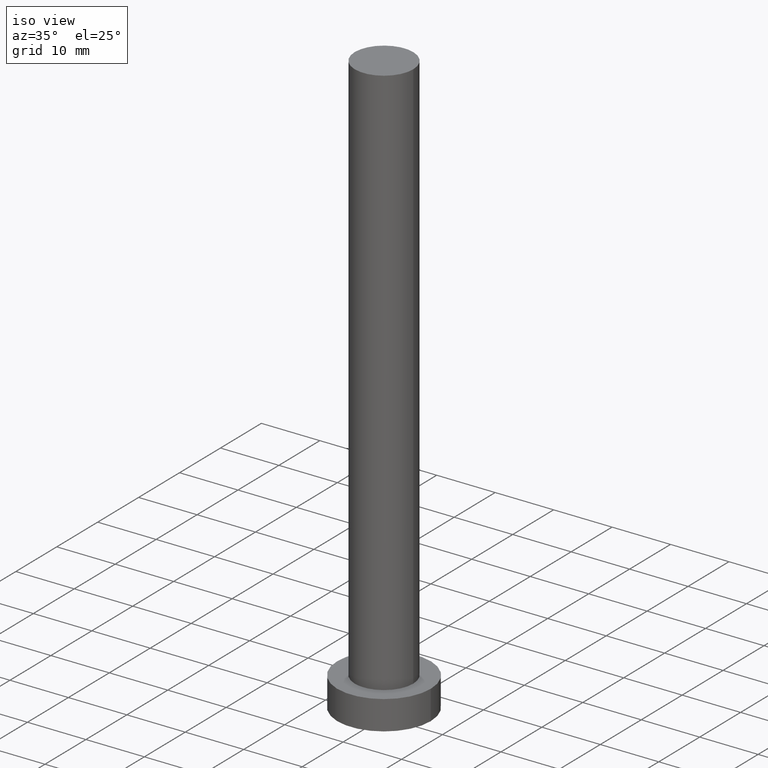
[diagram: clean part render]
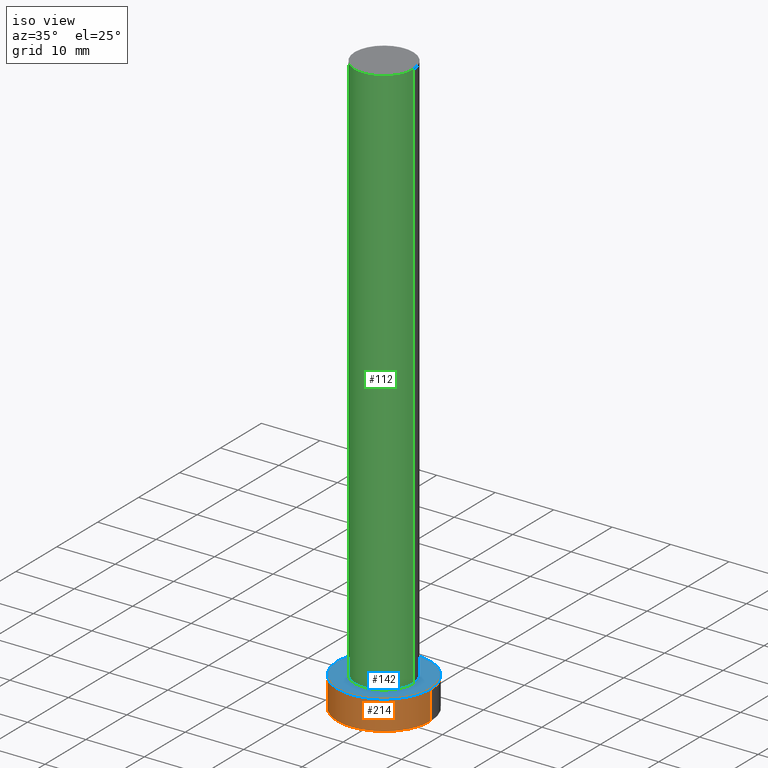
[diagram: same view with three faces highlighted in distinct colors, each labeled with its STEP entity id]
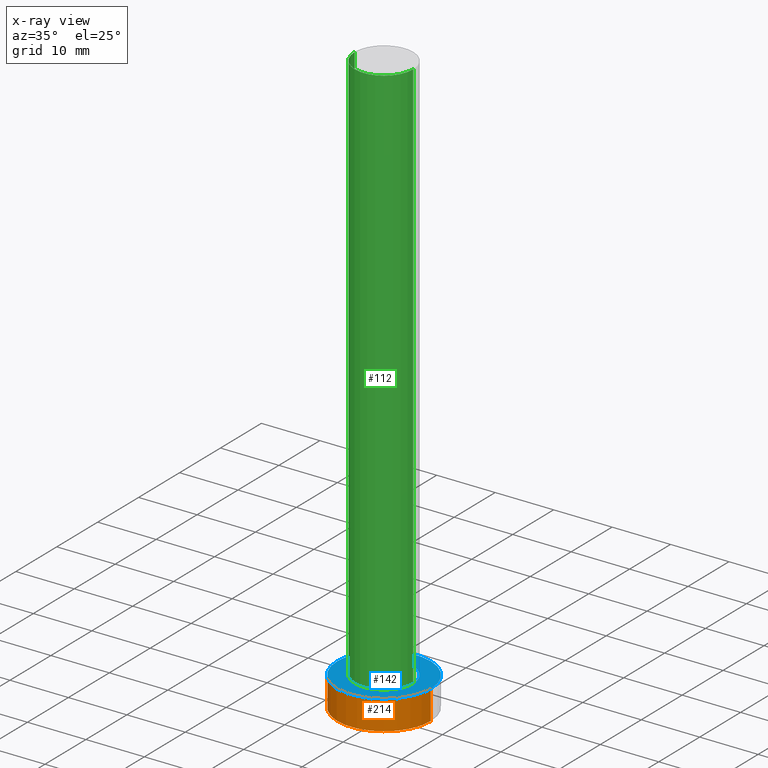
[diagram: x-ray of the same camera — body ghosted, the three highlighted faces saturated]
A machine part, iso view with three faces highlighted in distinct colors.
The next image is the same camera in x-ray (body ghosted, the three faces saturated) — at least one of them is partly hidden behind the body in this view.
Their STEP definitions:

[orange] entity #214 — the highlighted cylindrical surface (partial cylindrical patch) has radius 8 mm, axis along (-0, -0, -1).
#10 = VECTOR ( 'NONE', #26, 1000.000000000000000 ) ;
#11 = LINE ( 'NONE', #228, #10 ) ;
#14 = CARTESIAN_POINT ( 'NONE',  ( 8.000000000000000000, 9.797174393178825657E-16, 0.000000000000000000 ) ) ;
#21 = VERTEX_POINT ( 'NONE', #14 ) ;
#22 = CARTESIAN_POINT ( 'NONE',  ( -8.000000000000000000, 0.000000000000000000, 5.000000000000000000 ) ) ;
#23 = DIRECTION ( 'NONE',  ( 0.000000000000000000, 0.000000000000000000, 1.000000000000000000 ) ) ;
#26 = DIRECTION ( 'NONE',  ( -0.000000000000000000, -0.000000000000000000, -1.000000000000000000 ) ) ;
#27 = DIRECTION ( 'NONE',  ( -0.000000000000000000, -0.000000000000000000, -1.000000000000000000 ) ) ;
#35 = DIRECTION ( 'NONE',  ( 1.000000000000000000, 0.000000000000000000, 0.000000000000000000 ) ) ;
#45 = CARTESIAN_POINT ( 'NONE',  ( -8.000000000000000000, 0.000000000000000000, 0.000000000000000000 ) ) ;
#49 = AXIS2_PLACEMENT_3D ( 'NONE', #146, #23, #233 ) ;
#55 = EDGE_LOOP ( 'NONE', ( #127, #155, #139, #252 ) ) ;
#57 = EDGE_CURVE ( 'NONE', #141, #164, #150, .T. ) ;
#60 = CARTESIAN_POINT ( 'NONE',  ( 8.000000000000000000, 9.797174393178825657E-16, 5.000000000000000000 ) ) ;
#80 = FACE_OUTER_BOUND ( 'NONE', #55, .T. ) ;
#83 = CIRCLE ( 'NONE', #49, 8.000000000000000000 ) ;
#120 = DIRECTION ( 'NONE',  ( -1.000000000000000000, 0.000000000000000000, 0.000000000000000000 ) ) ;
#121 = AXIS2_PLACEMENT_3D ( 'NONE', #159, #176, #120 ) ;
#126 = LINE ( 'NONE', #22, #227 ) ;
#127 = ORIENTED_EDGE ( 'NONE', *, *, #224, .F. ) ;
#130 = EDGE_CURVE ( 'NONE', #141, #137, #126, .T. ) ;
#134 = AXIS2_PLACEMENT_3D ( 'NONE', #156, #229, #35 ) ;
#137 = VERTEX_POINT ( 'NONE', #45 ) ;
#139 = ORIENTED_EDGE ( 'NONE', *, *, #130, .T. ) ;
#141 = VERTEX_POINT ( 'NONE', #218 ) ;
#146 = CARTESIAN_POINT ( 'NONE',  ( 0.000000000000000000, 0.000000000000000000, 0.000000000000000000 ) ) ;
#150 = CIRCLE ( 'NONE', #134, 8.000000000000000000 ) ;
#155 = ORIENTED_EDGE ( 'NONE', *, *, #57, .F. ) ;
#156 = CARTESIAN_POINT ( 'NONE',  ( 0.000000000000000000, 0.000000000000000000, 5.000000000000000000 ) ) ;
#159 = CARTESIAN_POINT ( 'NONE',  ( 0.000000000000000000, 0.000000000000000000, 5.000000000000000000 ) ) ;
#164 = VERTEX_POINT ( 'NONE', #60 ) ;
#176 = DIRECTION ( 'NONE',  ( -0.000000000000000000, -0.000000000000000000, -1.000000000000000000 ) ) ;
#203 = EDGE_CURVE ( 'NONE', #137, #21, #83, .T. ) ;
#214 = ADVANCED_FACE ( 'NONE', ( #80 ), #222, .T. ) ;
#218 = CARTESIAN_POINT ( 'NONE',  ( -8.000000000000000000, 0.000000000000000000, 5.000000000000000000 ) ) ;
#222 = CYLINDRICAL_SURFACE ( 'NONE', #121, 8.000000000000000000 ) ;
#224 = EDGE_CURVE ( 'NONE', #164, #21, #11, .T. ) ;
#227 = VECTOR ( 'NONE', #27, 1000.000000000000000 ) ;
#228 = CARTESIAN_POINT ( 'NONE',  ( 8.000000000000000000, 9.797174393178825657E-16, 5.000000000000000000 ) ) ;
#229 = DIRECTION ( 'NONE',  ( 0.000000000000000000, 0.000000000000000000, 1.000000000000000000 ) ) ;
#233 = DIRECTION ( 'NONE',  ( 1.000000000000000000, 0.000000000000000000, 0.000000000000000000 ) ) ;
#252 = ORIENTED_EDGE ( 'NONE', *, *, #203, .T. ) ;

[blue] entity #142 — the highlighted planar face has unit normal (0, 0, 1).
#1 = EDGE_CURVE ( 'NONE', #187, #216, #90, .T. ) ;
#7 = AXIS2_PLACEMENT_3D ( 'NONE', #144, #78, #122 ) ;
#16 = CARTESIAN_POINT ( 'NONE',  ( 0.000000000000000000, 0.000000000000000000, 5.000000000000000000 ) ) ;
#35 = DIRECTION ( 'NONE',  ( 1.000000000000000000, 0.000000000000000000, 0.000000000000000000 ) ) ;
#40 = DIRECTION ( 'NONE',  ( 0.000000000000000000, 0.000000000000000000, 1.000000000000000000 ) ) ;
#41 = PLANE ( 'NONE',  #7 ) ;
#56 = AXIS2_PLACEMENT_3D ( 'NONE', #16, #95, #171 ) ;
#57 = EDGE_CURVE ( 'NONE', #141, #164, #150, .T. ) ;
#58 = DIRECTION ( 'NONE',  ( 1.000000000000000000, 0.000000000000000000, 0.000000000000000000 ) ) ;
#60 = CARTESIAN_POINT ( 'NONE',  ( 8.000000000000000000, 9.797174393178825657E-16, 5.000000000000000000 ) ) ;
#61 = EDGE_LOOP ( 'NONE', ( #194, #231 ) ) ;
#68 = DIRECTION ( 'NONE',  ( 1.000000000000000000, 0.000000000000000000, 0.000000000000000000 ) ) ;
#69 = AXIS2_PLACEMENT_3D ( 'NONE', #117, #195, #68 ) ;
#78 = DIRECTION ( 'NONE',  ( 0.000000000000000000, 0.000000000000000000, 1.000000000000000000 ) ) ;
#82 = FACE_OUTER_BOUND ( 'NONE', #172, .T. ) ;
#90 = CIRCLE ( 'NONE', #69, 5.000000000000000888 ) ;
#95 = DIRECTION ( 'NONE',  ( 0.000000000000000000, 0.000000000000000000, 1.000000000000000000 ) ) ;
#105 = CIRCLE ( 'NONE', #56, 5.000000000000000888 ) ;
#117 = CARTESIAN_POINT ( 'NONE',  ( 0.000000000000000000, 0.000000000000000000, 5.000000000000000000 ) ) ;
#118 = CARTESIAN_POINT ( 'NONE',  ( 0.000000000000000000, 0.000000000000000000, 5.000000000000000000 ) ) ;
#122 = DIRECTION ( 'NONE',  ( 1.000000000000000000, 0.000000000000000000, -0.000000000000000000 ) ) ;
#134 = AXIS2_PLACEMENT_3D ( 'NONE', #156, #229, #35 ) ;
#141 = VERTEX_POINT ( 'NONE', #218 ) ;
#142 = ADVANCED_FACE ( 'NONE', ( #221, #82 ), #41, .T. ) ;
#144 = CARTESIAN_POINT ( 'NONE',  ( 0.000000000000000000, 0.000000000000000000, 5.000000000000000000 ) ) ;
#150 = CIRCLE ( 'NONE', #134, 8.000000000000000000 ) ;
#156 = CARTESIAN_POINT ( 'NONE',  ( 0.000000000000000000, 0.000000000000000000, 5.000000000000000000 ) ) ;
#164 = VERTEX_POINT ( 'NONE', #60 ) ;
#171 = DIRECTION ( 'NONE',  ( 1.000000000000000000, 0.000000000000000000, 0.000000000000000000 ) ) ;
#172 = EDGE_LOOP ( 'NONE', ( #238, #247 ) ) ;
#183 = EDGE_CURVE ( 'NONE', #216, #187, #105, .T. ) ;
#187 = VERTEX_POINT ( 'NONE', #249 ) ;
#194 = ORIENTED_EDGE ( 'NONE', *, *, #1, .F. ) ;
#195 = DIRECTION ( 'NONE',  ( 0.000000000000000000, 0.000000000000000000, 1.000000000000000000 ) ) ;
#198 = CARTESIAN_POINT ( 'NONE',  ( 5.000000000000000888, 6.123233995736767268E-16, 5.000000000000000000 ) ) ;
#201 = CIRCLE ( 'NONE', #254, 8.000000000000000000 ) ;
#212 = EDGE_CURVE ( 'NONE', #164, #141, #201, .T. ) ;
#216 = VERTEX_POINT ( 'NONE', #198 ) ;
#218 = CARTESIAN_POINT ( 'NONE',  ( -8.000000000000000000, 0.000000000000000000, 5.000000000000000000 ) ) ;
#221 = FACE_BOUND ( 'NONE', #61, .T. ) ;
#229 = DIRECTION ( 'NONE',  ( 0.000000000000000000, 0.000000000000000000, 1.000000000000000000 ) ) ;
#231 = ORIENTED_EDGE ( 'NONE', *, *, #183, .F. ) ;
#238 = ORIENTED_EDGE ( 'NONE', *, *, #57, .T. ) ;
#247 = ORIENTED_EDGE ( 'NONE', *, *, #212, .T. ) ;
#249 = CARTESIAN_POINT ( 'NONE',  ( -5.000000000000000888, 0.000000000000000000, 5.000000000000000000 ) ) ;
#254 = AXIS2_PLACEMENT_3D ( 'NONE', #118, #40, #58 ) ;

[green] entity #112 — the highlighted cylindrical surface (edge-blend (fillet) strip) has radius 5 mm, axis along (-0, -0, -1).
#1 = EDGE_CURVE ( 'NONE', #187, #216, #90, .T. ) ;
#4 = ORIENTED_EDGE ( 'NONE', *, *, #1, .T. ) ;
#17 = DIRECTION ( 'NONE',  ( -0.000000000000000000, -0.000000000000000000, -1.000000000000000000 ) ) ;
#18 = CARTESIAN_POINT ( 'NONE',  ( 5.000000000000000888, 6.123233995736767268E-16, 100.0000000000000000 ) ) ;
#20 = CIRCLE ( 'NONE', #138, 5.000000000000000888 ) ;
#31 = EDGE_CURVE ( 'NONE', #136, #216, #93, .T. ) ;
#36 = DIRECTION ( 'NONE',  ( 1.000000000000000000, 0.000000000000000000, 0.000000000000000000 ) ) ;
#39 = ORIENTED_EDGE ( 'NONE', *, *, #217, .T. ) ;
#52 = AXIS2_PLACEMENT_3D ( 'NONE', #250, #70, #161 ) ;
#68 = DIRECTION ( 'NONE',  ( 1.000000000000000000, 0.000000000000000000, 0.000000000000000000 ) ) ;
#69 = AXIS2_PLACEMENT_3D ( 'NONE', #117, #195, #68 ) ;
#70 = DIRECTION ( 'NONE',  ( -0.000000000000000000, -0.000000000000000000, -1.000000000000000000 ) ) ;
#89 = EDGE_CURVE ( 'NONE', #208, #136, #20, .T. ) ;
#90 = CIRCLE ( 'NONE', #69, 5.000000000000000888 ) ;
#93 = LINE ( 'NONE', #18, #237 ) ;
#96 = CARTESIAN_POINT ( 'NONE',  ( 0.000000000000000000, 0.000000000000000000, 100.0000000000000000 ) ) ;
#100 = CYLINDRICAL_SURFACE ( 'NONE', #52, 5.000000000000000888 ) ;
#103 = EDGE_LOOP ( 'NONE', ( #179, #234, #39, #4 ) ) ;
#112 = ADVANCED_FACE ( 'NONE', ( #174 ), #100, .T. ) ;
#117 = CARTESIAN_POINT ( 'NONE',  ( 0.000000000000000000, 0.000000000000000000, 5.000000000000000000 ) ) ;
#123 = CARTESIAN_POINT ( 'NONE',  ( 5.000000000000000888, 6.123233995736767268E-16, 100.0000000000000000 ) ) ;
#136 = VERTEX_POINT ( 'NONE', #123 ) ;
#138 = AXIS2_PLACEMENT_3D ( 'NONE', #96, #213, #36 ) ;
#140 = VECTOR ( 'NONE', #148, 1000.000000000000000 ) ;
#143 = CARTESIAN_POINT ( 'NONE',  ( -5.000000000000000888, 0.000000000000000000, 100.0000000000000000 ) ) ;
#148 = DIRECTION ( 'NONE',  ( -0.000000000000000000, -0.000000000000000000, -1.000000000000000000 ) ) ;
#161 = DIRECTION ( 'NONE',  ( -1.000000000000000000, 0.000000000000000000, 0.000000000000000000 ) ) ;
#174 = FACE_OUTER_BOUND ( 'NONE', #103, .T. ) ;
#177 = LINE ( 'NONE', #219, #140 ) ;
#179 = ORIENTED_EDGE ( 'NONE', *, *, #31, .F. ) ;
#187 = VERTEX_POINT ( 'NONE', #249 ) ;
#195 = DIRECTION ( 'NONE',  ( 0.000000000000000000, 0.000000000000000000, 1.000000000000000000 ) ) ;
#198 = CARTESIAN_POINT ( 'NONE',  ( 5.000000000000000888, 6.123233995736767268E-16, 5.000000000000000000 ) ) ;
#208 = VERTEX_POINT ( 'NONE', #143 ) ;
#213 = DIRECTION ( 'NONE',  ( 0.000000000000000000, 0.000000000000000000, 1.000000000000000000 ) ) ;
#216 = VERTEX_POINT ( 'NONE', #198 ) ;
#217 = EDGE_CURVE ( 'NONE', #208, #187, #177, .T. ) ;
#219 = CARTESIAN_POINT ( 'NONE',  ( -5.000000000000000888, 0.000000000000000000, 100.0000000000000000 ) ) ;
#234 = ORIENTED_EDGE ( 'NONE', *, *, #89, .F. ) ;
#237 = VECTOR ( 'NONE', #17, 1000.000000000000000 ) ;
#249 = CARTESIAN_POINT ( 'NONE',  ( -5.000000000000000888, 0.000000000000000000, 5.000000000000000000 ) ) ;
#250 = CARTESIAN_POINT ( 'NONE',  ( 0.000000000000000000, 0.000000000000000000, 100.0000000000000000 ) ) ;